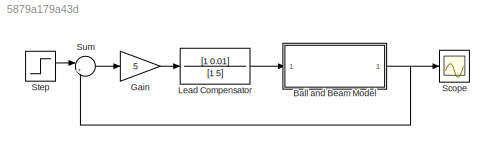
MODEL slx_5879a179a43d
KIND model
CONFIG AbsTol = auto
CONFIG EnableMultiTasking = off
CONFIG FixedStep = auto
CONFIG MaxStep = auto
CONFIG MinStep = auto
CONFIG RelTol = 1e-3
CONFIG SampleTimeConstraint = Unconstrained
CONFIG SolverName = ode45
CONFIG StartTime = 0.0
CONFIG StopTime = 10.0
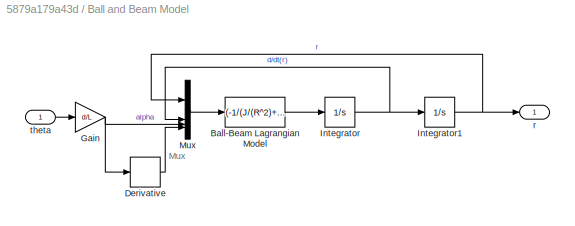
BLOCK [SubSystem] Ball and Beam Model
BLOCK [Fcn] Ball and Beam Model/Ball-Beam Lagrangian Model
  Expr = (-1/(J/(R^2)+m))*(m*g*sin(u[3])-m*u[1]*(u[4])^2)
BLOCK [Derivative] Ball and Beam Model/Derivative
BLOCK [Gain] Ball and Beam Model/Gain
  Gain = d/L
BLOCK [Integrator] Ball and Beam Model/Integrator
BLOCK [Integrator] Ball and Beam Model/Integrator1
BLOCK [Mux] Ball and Beam Model/Mux
  DisplayOption = bar
BLOCK [Outport] Ball and Beam Model/r
BLOCK [Inport] Ball and Beam Model/theta
BLOCK [Gain] Gain
  Gain = 5
BLOCK [TransferFcn] Lead Compensator
  Denominator = [1 5]
  Numerator = [1 0.01]
BLOCK [Scope] Scope
  Floating = off
  NumInputPorts = 1
  ScopeSpecificationString = Simulink.scopes.TimeScopeBlockCfg('CurrentConfiguration', extmgr.ConfigurationSet(extmgr.Configuration('Core','General UI',true),extmgr.Configuration('Core','Source UI',true),extmgr.Configuration('Sources','WiredSimulink',true),extmgr.Configuration('Visuals','Time Domain',true,'SerializedDisplays',{struct('MinYLimReal','-0.1254','MaxYLimReal','1.12856','YLabelReal','','MinYLimMag','0.00000','MaxYL...<+1491ch>
BLOCK [Step] Step
  SampleTime = 0
  Time = 0
BLOCK [Sum] Sum
  Inputs = |+-
ANNOTATION Ball and Beam Model: Mux
LINE Ball and Beam Model/Ball-Beam Lagrangian Model:1 -> Ball and Beam Model/Integrator:1
LINE Ball and Beam Model/Derivative:1 -> Ball and Beam Model/Mux:4
NET Ball and Beam Model/Gain:1 -> Ball and Beam Model/Derivative:1, Ball and Beam Model/Mux:3
NET Ball and Beam Model/Integrator1:1 -> Ball and Beam Model/Mux:1, Ball and Beam Model/r:1
NET Ball and Beam Model/Integrator:1 -> Ball and Beam Model/Integrator1:1, Ball and Beam Model/Mux:2
LINE Ball and Beam Model/Mux:1 -> Ball and Beam Model/Ball-Beam Lagrangian Model:1
LINE Ball and Beam Model/theta:1 -> Ball and Beam Model/Gain:1
NET Ball and Beam Model:1 -> Scope:1, Sum:2
LINE Gain:1 -> Lead Compensator:1
LINE Lead Compensator:1 -> Ball and Beam Model:1
LINE Step:1 -> Sum:1
LINE Sum:1 -> Gain:1
note: NET lines group one-source signal fan-out (src -> all destinations, sorted); 1:1 wires keep LINE
